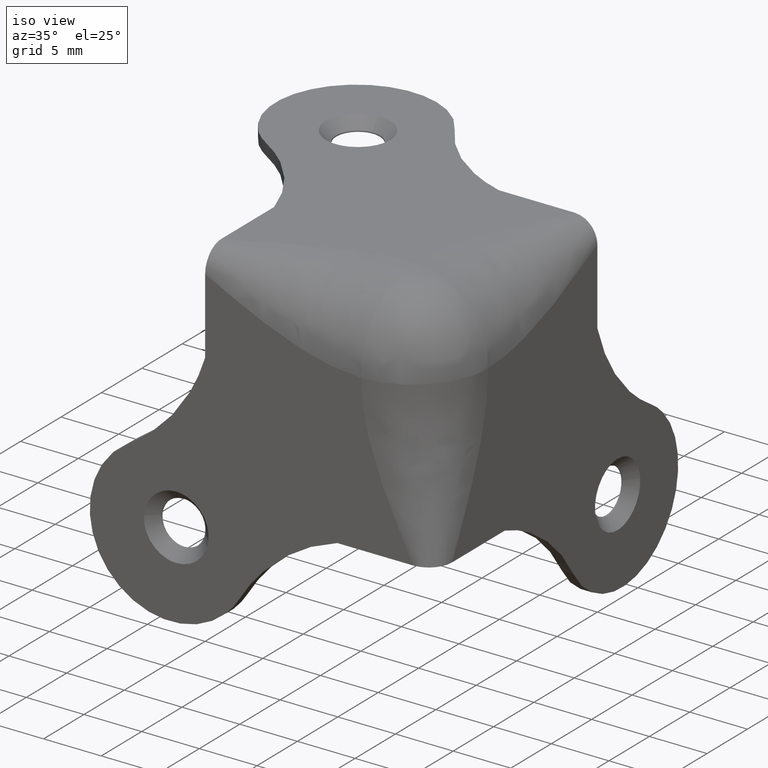
[diagram: clean part render]
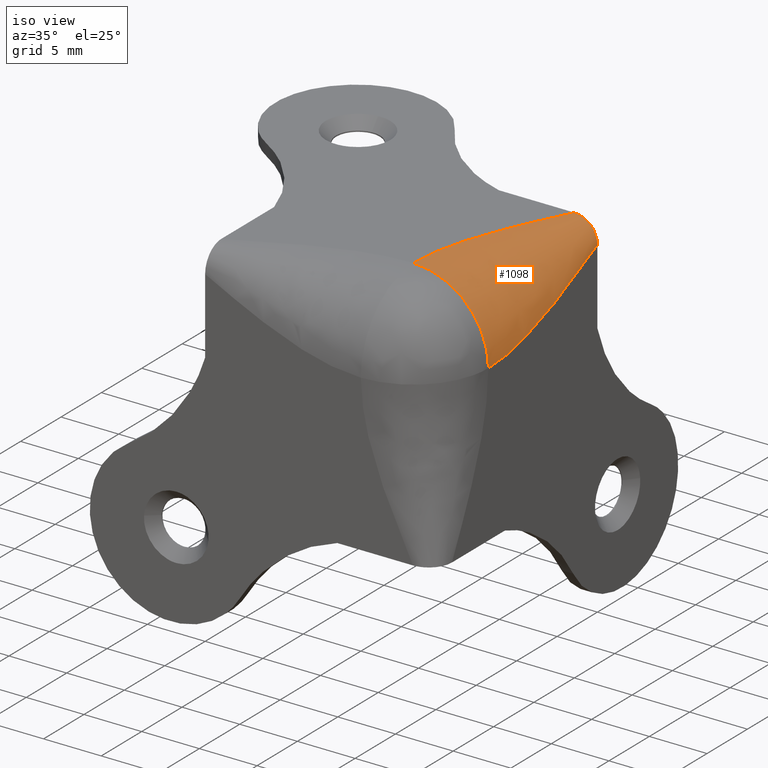
[diagram: same view with one face highlighted and labeled with its STEP entity id]
A machine part, iso view. The second image highlights one B-rep face of the part: STEP entity #1098.
In plain terms, the highlighted face is a freeform B-spline surface patch.
Its self-contained STEP definition (entity closure, byte-faithful):
#1028=CARTESIAN_POINT('',(0.0,20.0,28.0));
#1029=CARTESIAN_POINT('',(0.0,20.0,29.999999999999947));
#1030=CARTESIAN_POINT('',(-2.0,20.0,30.0));
#1031=CARTESIAN_POINT('',(0.0,15.500000000000000,25.750000000000000));
#1032=CARTESIAN_POINT('',(0.0,15.499999999999979,29.999999999999947));
#1033=CARTESIAN_POINT('',(-4.250000000000000,15.500000000000000,30.0));
#1034=CARTESIAN_POINT('',(0.0,11.0,23.500000000000000));
#1035=CARTESIAN_POINT('',(0.0,10.999999999999959,29.999999999999947));
#1036=CARTESIAN_POINT('',(-6.500000000000000,11.0,30.0));
#1037=CARTESIAN_POINT('',(0.0,6.500000000000000,23.500000000000000));
#1038=CARTESIAN_POINT('',(0.0,6.499999999999940,29.999999999999947));
#1039=CARTESIAN_POINT('',(-6.500000000000000,6.500000000000000,30.0));
#1047=(BOUNDED_SURFACE()B_SPLINE_SURFACE(2,3,((#1028,#1031,#1034,#1037),(#1029,#1032,#1035,#1038),(#1030,#1033,#1036,#1039)),.UNSPECIFIED.,.F.,.F.,.U.)B_SPLINE_SURFACE_WITH_KNOTS((3,3),(4,4),(0.0,10.769552621700470),(0.0,15.093458848123580),.UNSPECIFIED.)GEOMETRIC_REPRESENTATION_ITEM()RATIONAL_B_SPLINE_SURFACE(((1.0,1.0,1.0,1.0),(0.707106781186548,0.707106781186548,0.707106781186548,0.707106781186548),(1.0,1.0,1.0,1.0)))REPRESENTATION_ITEM('')SURFACE());
#1048=CARTESIAN_POINT('',(-2.0,20.0,30.0));
#1049=VERTEX_POINT('',#1048);
#1050=CARTESIAN_POINT('',(0.0,20.0,28.0));
#1051=VERTEX_POINT('',#1050);
#1052=CARTESIAN_POINT('',(-2.000000000000000,20.000000000000007,30.0));
#1053=CARTESIAN_POINT('',(0.0,20.0,29.999999999999947));
#1054=CARTESIAN_POINT('',(0.0,20.000000000000007,28.0));
#1062=(BOUNDED_CURVE()B_SPLINE_CURVE(2,(#1052,#1053,#1054),.UNSPECIFIED.,.F.,.U.)CURVE()GEOMETRIC_REPRESENTATION_ITEM()QUASI_UNIFORM_CURVE()RATIONAL_B_SPLINE_CURVE((1.000000000000000,0.707106781186548,1.000000000000000))REPRESENTATION_ITEM(''));
#1063=EDGE_CURVE('',#1049,#1051,#1062,.T.);
#1064=ORIENTED_EDGE('',*,*,#1063,.F.);
#1065=CARTESIAN_POINT('',(-6.500000000000000,6.500000000000000,30.0));
#1066=VERTEX_POINT('',#1065);
#1067=CARTESIAN_POINT('',(-6.500000000000000,6.500000000000000,30.0));
#1068=CARTESIAN_POINT('',(-6.500000000000000,11.0,30.0));
#1069=CARTESIAN_POINT('',(-4.250000000000000,15.500000000000000,30.0));
#1070=CARTESIAN_POINT('',(-2.0,20.0,30.0));
#1071=B_SPLINE_CURVE_WITH_KNOTS('',3,(#1067,#1068,#1069,#1070),.UNSPECIFIED.,.F.,.U.,(4,4),(0.228571428571428,1.0),.UNSPECIFIED.);
#1072=EDGE_CURVE('',#1066,#1049,#1071,.T.);
#1073=ORIENTED_EDGE('',*,*,#1072,.F.);
#1074=CARTESIAN_POINT('',(0.0,6.500000000000000,23.500000000000000));
#1075=VERTEX_POINT('',#1074);
#1076=CARTESIAN_POINT('',(-6.500000000000000,6.500000000000000,30.0));
#1077=CARTESIAN_POINT('',(0.0,6.499999999999940,29.999999999999947));
#1078=CARTESIAN_POINT('',(0.0,6.500000000000000,23.500000000000000));
#1086=(BOUNDED_CURVE()B_SPLINE_CURVE(2,(#1076,#1077,#1078),.UNSPECIFIED.,.F.,.U.)CURVE()GEOMETRIC_REPRESENTATION_ITEM()QUASI_UNIFORM_CURVE()RATIONAL_B_SPLINE_CURVE((1.0,0.707106781186548,1.0))REPRESENTATION_ITEM(''));
#1087=EDGE_CURVE('',#1066,#1075,#1086,.T.);
#1088=ORIENTED_EDGE('',*,*,#1087,.T.);
#1089=CARTESIAN_POINT('',(0.0,20.0,28.0));
#1090=CARTESIAN_POINT('',(0.0,15.500000000000000,25.750000000000000));
#1091=CARTESIAN_POINT('',(0.0,11.0,23.500000000000000));
#1092=CARTESIAN_POINT('',(0.0,6.500000000000000,23.500000000000000));
#1093=B_SPLINE_CURVE_WITH_KNOTS('',3,(#1089,#1090,#1091,#1092),.UNSPECIFIED.,.F.,.U.,(4,4),(0.228571428571428,1.0),.UNSPECIFIED.);
#1094=EDGE_CURVE('',#1051,#1075,#1093,.T.);
#1095=ORIENTED_EDGE('',*,*,#1094,.F.);
#1096=EDGE_LOOP('',(#1064,#1073,#1088,#1095));
#1097=FACE_OUTER_BOUND('',#1096,.T.);
#1098=ADVANCED_FACE('',(#1097),#1047,.T.);